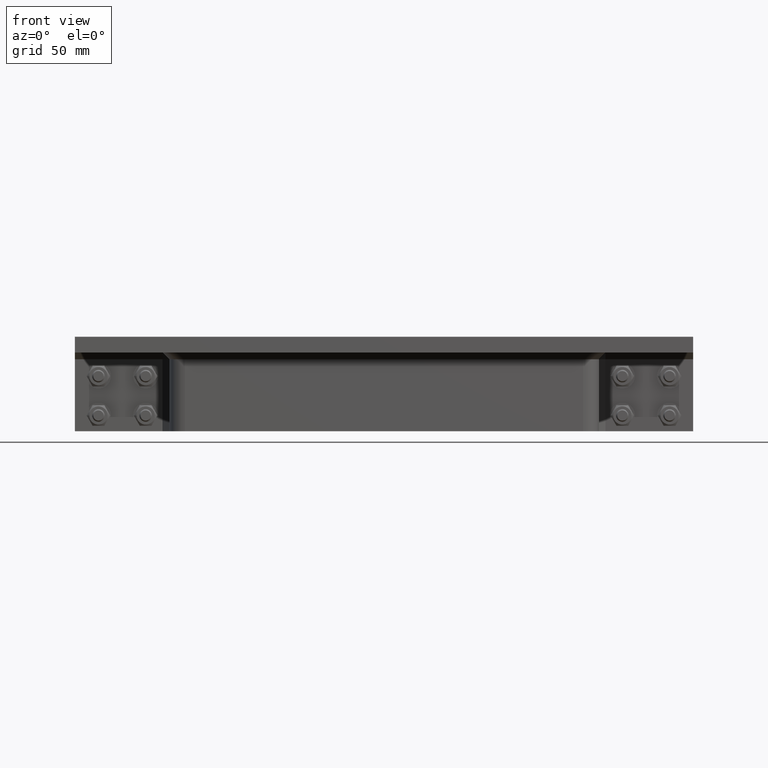
[diagram: clean part render]
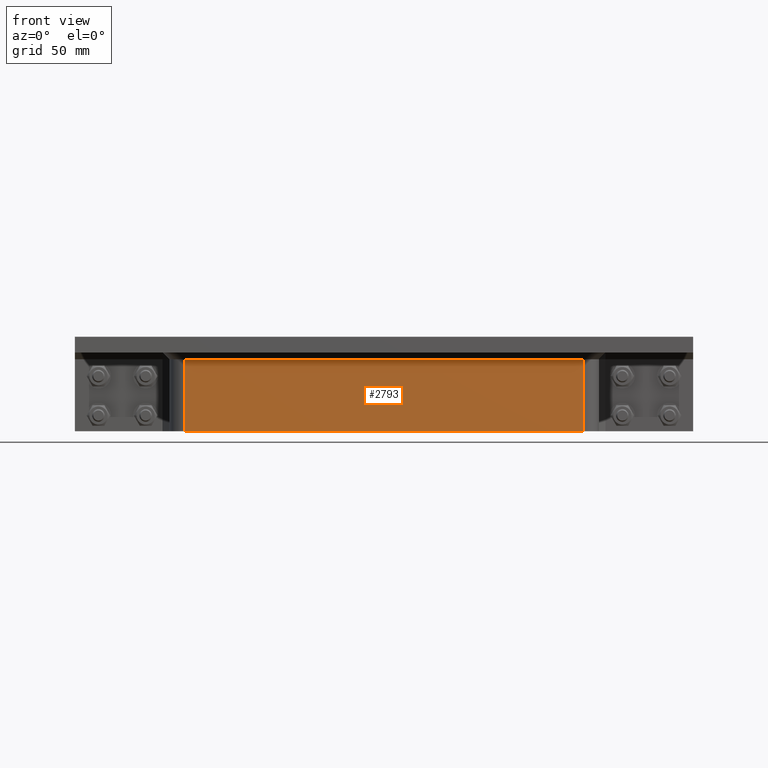
[diagram: same view with one face highlighted and labeled with its STEP entity id]
A machine part, front view. The second image highlights one B-rep face of the part: STEP entity #2793.
In plain terms, the highlighted planar face has unit normal (0, -1, 0).
Its self-contained STEP definition (entity closure, byte-faithful):
#498=FACE_OUTER_BOUND('',#685,.T.);
#685=EDGE_LOOP('',(#2167,#2168,#2169,#2170));
#865=LINE('',#4307,#1084);
#915=LINE('',#4466,#1134);
#940=LINE('',#4527,#1159);
#942=LINE('',#4533,#1161);
#1084=VECTOR('',#3463,10.);
#1134=VECTOR('',#3617,10.);
#1159=VECTOR('',#3688,10.);
#1161=VECTOR('',#3698,10.);
#1299=VERTEX_POINT('',#4299);
#1301=VERTEX_POINT('',#4305);
#1357=VERTEX_POINT('',#4463);
#1358=VERTEX_POINT('',#4465);
#1548=EDGE_CURVE('',#1301,#1299,#865,.T.);
#1627=EDGE_CURVE('',#1357,#1358,#915,.T.);
#1659=EDGE_CURVE('',#1299,#1357,#940,.T.);
#1661=EDGE_CURVE('',#1301,#1358,#942,.T.);
#2167=ORIENTED_EDGE('',*,*,#1548,.F.);
#2168=ORIENTED_EDGE('',*,*,#1661,.T.);
#2169=ORIENTED_EDGE('',*,*,#1627,.F.);
#2170=ORIENTED_EDGE('',*,*,#1659,.F.);
#2685=PLANE('',#3204);
#2793=ADVANCED_FACE('',(#498),#2685,.T.);
#3204=AXIS2_PLACEMENT_3D('',#4534,#3699,#3700);
#3463=DIRECTION('',(1.,0.,0.));
#3617=DIRECTION('',(-1.,0.,0.));
#3688=DIRECTION('',(0.,0.,-1.));
#3698=DIRECTION('',(0.,0.,-1.));
#3699=DIRECTION('center_axis',(0.,-1.,0.));
#3700=DIRECTION('ref_axis',(-1.,0.,0.));
#4299=CARTESIAN_POINT('',(126.5,-60.4999999999999,-14.3));
#4305=CARTESIAN_POINT('',(-126.5,-60.4999999999999,-14.3));
#4307=CARTESIAN_POINT('',(63.25,-60.4999999999999,-14.3));
#4463=CARTESIAN_POINT('',(126.5,-60.4999999999999,-60.));
#4465=CARTESIAN_POINT('',(-126.5,-60.4999999999999,-60.));
#4466=CARTESIAN_POINT('',(-126.5,-60.4999999999999,-60.));
#4527=CARTESIAN_POINT('',(126.5,-60.4999999999999,0.));
#4533=CARTESIAN_POINT('',(-126.5,-60.4999999999999,0.));
#4534=CARTESIAN_POINT('Origin',(126.5,-60.4999999999999,0.));